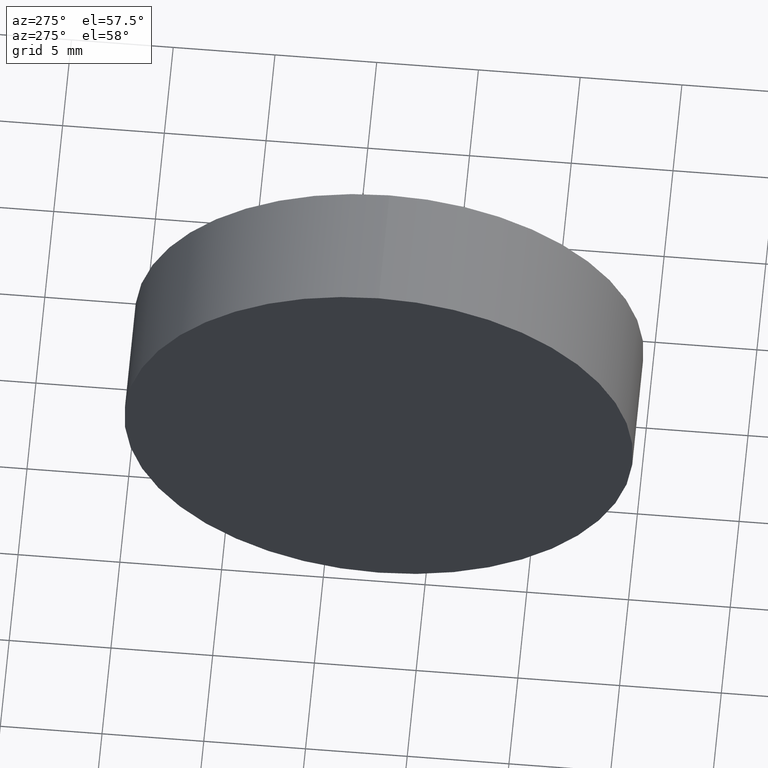
[diagram: clean part render]
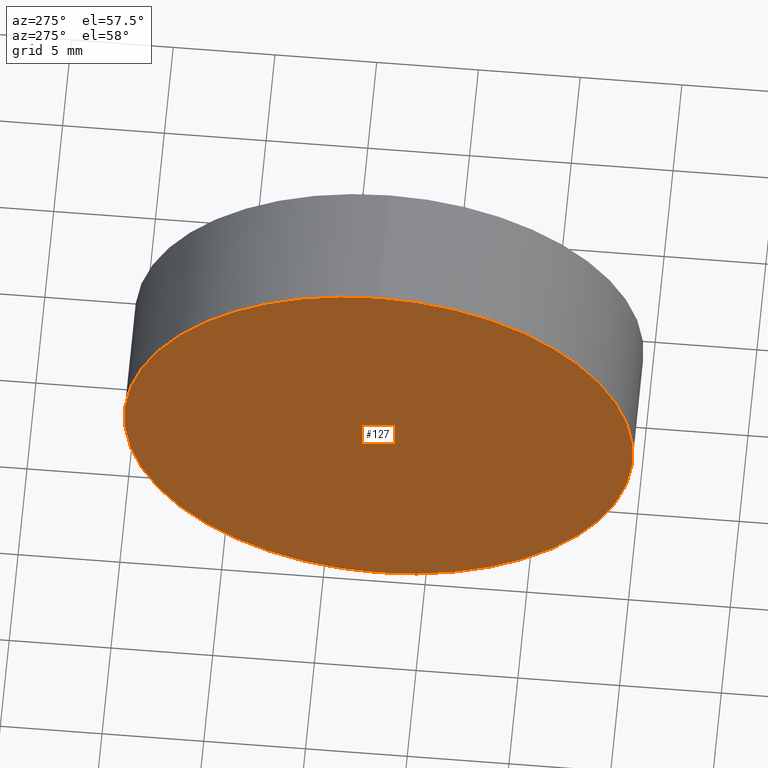
[diagram: same view with one face highlighted and labeled with its STEP entity id]
A machine part, auxiliary view. The second image highlights one B-rep face of the part: STEP entity #127.
In plain terms, the highlighted planar face has unit normal (1, 0, 0).
Its self-contained STEP definition (entity closure, byte-faithful):
#9 = CIRCLE ( 'NONE', #25, 12.49999999999998400 ) ;
#15 = EDGE_LOOP ( 'NONE', ( #29, #31 ) ) ;
#21 = DIRECTION ( 'NONE',  ( 0.0000000000000000000, 0.0000000000000000000, 1.000000000000000000 ) ) ;
#25 = AXIS2_PLACEMENT_3D ( 'NONE', #71, #96, #33 ) ;
#28 = DIRECTION ( 'NONE',  ( 0.0000000000000000000, 0.0000000000000000000, -1.000000000000000000 ) ) ;
#29 = ORIENTED_EDGE ( 'NONE', *, *, #41, .T. ) ;
#31 = ORIENTED_EDGE ( 'NONE', *, *, #45, .T. ) ;
#32 = AXIS2_PLACEMENT_3D ( 'NONE', #125, #61, #28 ) ;
#33 = DIRECTION ( 'NONE',  ( 0.0000000000000000000, 0.0000000000000000000, 1.000000000000000000 ) ) ;
#37 = VERTEX_POINT ( 'NONE', #95 ) ;
#41 = EDGE_CURVE ( 'NONE', #52, #37, #9, .T. ) ;
#45 = EDGE_CURVE ( 'NONE', #37, #52, #63, .T. ) ;
#50 = AXIS2_PLACEMENT_3D ( 'NONE', #56, #86, #21 ) ;
#51 = PLANE ( 'NONE',  #32 ) ;
#52 = VERTEX_POINT ( 'NONE', #78 ) ;
#56 = CARTESIAN_POINT ( 'NONE',  ( 260.1571404925609800, 77.29317934901541800, 0.0000000000000000000 ) ) ;
#61 = DIRECTION ( 'NONE',  ( 1.000000000000000000, 0.0000000000000000000, 0.0000000000000000000 ) ) ;
#63 = CIRCLE ( 'NONE', #50, 12.49999999999998400 ) ;
#65 = FACE_OUTER_BOUND ( 'NONE', #15, .T. ) ;
#71 = CARTESIAN_POINT ( 'NONE',  ( 260.1571404925609800, 77.29317934901541800, 0.0000000000000000000 ) ) ;
#78 = CARTESIAN_POINT ( 'NONE',  ( 260.1571404925609800, 77.29317934901541800, 12.49999999999998400 ) ) ;
#86 = DIRECTION ( 'NONE',  ( -1.000000000000000000, -0.0000000000000000000, -0.0000000000000000000 ) ) ;
#95 = CARTESIAN_POINT ( 'NONE',  ( 260.1571404925609800, 77.29317934901541800, -12.49999999999998400 ) ) ;
#96 = DIRECTION ( 'NONE',  ( -1.000000000000000000, -0.0000000000000000000, -0.0000000000000000000 ) ) ;
#125 = CARTESIAN_POINT ( 'NONE',  ( 260.1571404925609800, 77.29317934901540400, 0.0000000000000000000 ) ) ;
#127 = ADVANCED_FACE ( 'NONE', ( #65 ), #51, .F. ) ;